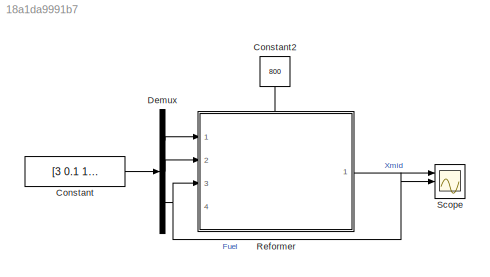
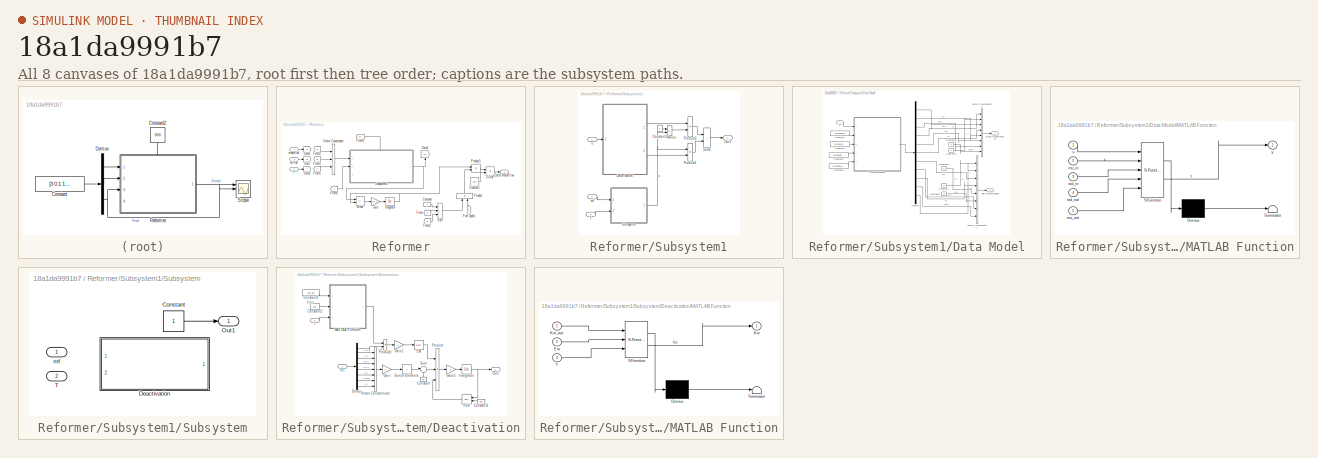
[diagram: thumbnail index - all 8 canvases of the model, root first then tree order]
MODEL slx_18a1da9991b7
KIND model
CONFIG AbsTol = auto
CONFIG EnableMultiTasking = off
CONFIG FixedStep = auto
CONFIG MaxStep = auto
CONFIG MinStep = auto
CONFIG RelTol = 1e-3
CONFIG SampleTimeConstraint = Unconstrained
CONFIG SolverName = VariableStepAuto
CONFIG StartTime = 0.0
CONFIG StopTime = 3
BLOCK [Constant] Constant
  Value = [3   0.1  1e-5]
BLOCK [Constant] Constant2
  NameLocation = left
  Value = 800
BLOCK [Demux] Demux
  Outputs = 3
  Ports = [1, 3]
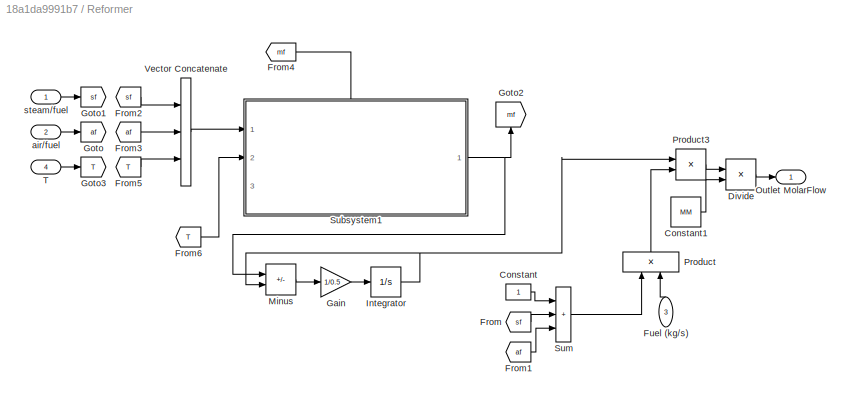
BLOCK [SubSystem] Reformer
  PortSchema = {"entries":[{"content":{"sides":[{"content":{"connectorIds":["In1","In2","In3"]},"type":"ConnectorPlacement.EquallySpacedRectSide","uuid":"bba98e9a-4a8f-433d-80b6-6443373beb37"},{"content":{"connectorIds":["Out1"],"side":"RIGHT"},"type":"ConnectorPlacement.EquallySpacedRectSide","uuid":"bb8208fa-3ad6-4550-bb87-9c458da504c5"},{"content":{"connectorIds":["In4"],"side":"TOP"},"type":"ConnectorPlaceme...<+257ch>
  Ports = [4, 1]
  RequestExecContextInheritance = off
BLOCK [Constant] Reformer/Constant
BLOCK [Constant] Reformer/Constant1
  Value = MM
BLOCK [Product] Reformer/Divide
  Inputs = */
  Ports = [2, 1]
BLOCK [From] Reformer/From
  GotoTag = sf
BLOCK [From] Reformer/From1
  GotoTag = af
BLOCK [From] Reformer/From2
  GotoTag = sf
BLOCK [From] Reformer/From3
  GotoTag = af
BLOCK [From] Reformer/From4
  GotoTag = mf
BLOCK [From] Reformer/From5
  GotoTag = T
BLOCK [From] Reformer/From6
  GotoTag = T
BLOCK [Inport] Reformer/Fuel (kg//s)
  NameLocation = right
  Port = 3
BLOCK [Gain] Reformer/Gain
  Gain = 1/0.5
BLOCK [Goto] Reformer/Goto
  GotoTag = af
BLOCK [Goto] Reformer/Goto1
  GotoTag = sf
BLOCK [Goto] Reformer/Goto2
  GotoTag = mf
  NameLocation = right
BLOCK [Goto] Reformer/Goto3
  GotoTag = T
BLOCK [Integrator] Reformer/Integrator
  Ports = [1, 1]
BLOCK [Sum] Reformer/Minus
  IconShape = rectangular
  Inputs = +-
  Ports = [2, 1]
BLOCK [Outport] Reformer/Outlet MolarFlow
BLOCK [Product] Reformer/Product
  NameLocation = right
  Ports = [2, 1]
BLOCK [Product] Reformer/Product3
  Ports = [2, 1]
BLOCK [SubSystem] Reformer/Subsystem1
  PortSchema = {"entries":[{"content":{"sides":[{"content":{"connectorIds":["In1","In2"]},"type":"ConnectorPlacement.EquallySpacedRectSide","uuid":"d4e99106-98ee-451f-9de6-7a659962116b"},{"content":{"connectorIds":["Out1"],"side":"RIGHT"},"type":"ConnectorPlacement.EquallySpacedRectSide","uuid":"1c23e47e-8482-4a31-825f-a97525afd909"},{"content":{"connectorIds":["In3"],"side":"TOP"},"type":"ConnectorPlacement.Equ...<+251ch>
  Ports = [3, 1]
  RequestExecContextInheritance = off
BLOCK [Constant] Reformer/Subsystem1/Constant2
BLOCK [SubSystem] Reformer/Subsystem1/Data Model
  Ports = [1, 2]
  RequestExecContextInheritance = off
BLOCK [Constant] Reformer/Subsystem1/Data Model/Constant1
  Value = params.std_in
BLOCK [Constant] Reformer/Subsystem1/Data Model/Constant2
  Value = 0
BLOCK [Constant] Reformer/Subsystem1/Data Model/Constant3
  Value = params.std_out
BLOCK [Constant] Reformer/Subsystem1/Data Model/Constant4
  Value = params.mu_in
BLOCK [Constant] Reformer/Subsystem1/Data Model/Constant5
  Value = 0
BLOCK [Constant] Reformer/Subsystem1/Data Model/Constant6
  Value = 0
BLOCK [Constant] Reformer/Subsystem1/Data Model/Constant7
  Value = 0
BLOCK [Constant] Reformer/Subsystem1/Data Model/Constant8
  Value = params.mu_out
BLOCK [Constant] Reformer/Subsystem1/Data Model/Constant9
  Value = 0
BLOCK [Demux] Reformer/Subsystem1/Data Model/Demux
  Outputs = 11
  Ports = [1, 11]
BLOCK [Outport] Reformer/Subsystem1/Data Model/Inlet MassFractions
BLOCK [SubSystem] Reformer/Subsystem1/Data Model/MATLAB Function
  ErrorFcn = Stateflow.Translate.translate
  PermitHierarchicalResolution = ExplicitOnly
  Ports = [5, 1]
  RequestExecContextInheritance = off
  SFBlockType = MATLAB Function
  TreatAsAtomicUnit = on
BLOCK [Demux] Reformer/Subsystem1/Data Model/MATLAB Function/ Demux 
  Outputs = 1
  Ports = [1, 1]
BLOCK [S-Function] Reformer/Subsystem1/Data Model/MATLAB Function/ SFunction 
  EnableBusSupport = on
  FunctionName = sf_sfun
  PortCounts = [5 2]
  Ports = [5, 2]
  SFcnIsStateOwnerBlock = off
  SFunctionDeploymentMode = off
  Tag = Stateflow S-Function 2
BLOCK [Terminator] Reformer/Subsystem1/Data Model/MATLAB Function/ Terminator 
BLOCK [Inport] Reformer/Subsystem1/Data Model/MATLAB Function/mu_in
  Port = 2
BLOCK [Inport] Reformer/Subsystem1/Data Model/MATLAB Function/mu_out
  Port = 5
BLOCK [Inport] Reformer/Subsystem1/Data Model/MATLAB Function/std_in
  Port = 3
BLOCK [Inport] Reformer/Subsystem1/Data Model/MATLAB Function/std_out
  Port = 4
BLOCK [Inport] Reformer/Subsystem1/Data Model/MATLAB Function/u
BLOCK [Outport] Reformer/Subsystem1/Data Model/MATLAB Function/y
BLOCK [Outport] Reformer/Subsystem1/Data Model/Outlet MassFractions
  Port = 2
BLOCK [Concatenate] Reformer/Subsystem1/Data Model/Vector Concatenate1
  NumInputs = 8
  Ports = [8, 1]
BLOCK [Concatenate] Reformer/Subsystem1/Data Model/Vector Concatenate2
  NumInputs = 8
  Ports = [8, 1]
BLOCK [Inport] Reformer/Subsystem1/Data Model/u
BLOCK [Sum] Reformer/Subsystem1/Minus
  IconShape = rectangular
  Inputs = +-
  Ports = [2, 1]
BLOCK [Outport] Reformer/Subsystem1/Out1
BLOCK [Product] Reformer/Subsystem1/Product1
  Ports = [2, 1]
BLOCK [Product] Reformer/Subsystem1/Product2
  Ports = [2, 1]
BLOCK [SubSystem] Reformer/Subsystem1/Subsystem
  Ports = [2, 1]
  RequestExecContextInheritance = off
BLOCK [Constant] Reformer/Subsystem1/Subsystem/Constant
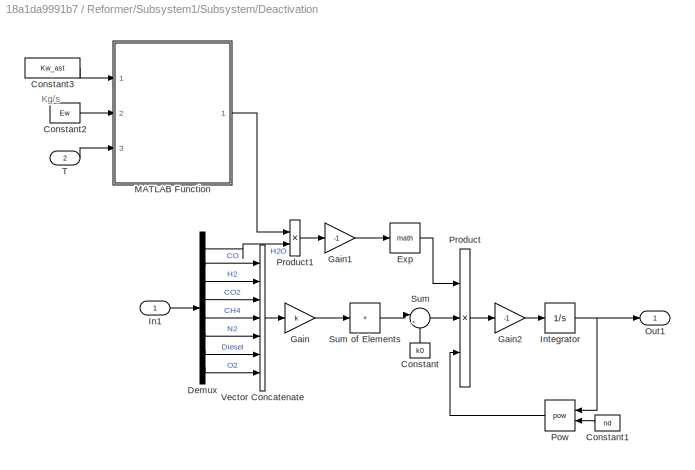
BLOCK [SubSystem] Reformer/Subsystem1/Subsystem/Deactivation
  Commented = on
  Ports = [2, 1]
  RequestExecContextInheritance = off
BLOCK [Constant] Reformer/Subsystem1/Subsystem/Deactivation/Constant
  NameLocation = right
  Value = k0
BLOCK [Constant] Reformer/Subsystem1/Subsystem/Deactivation/Constant1
  NameLocation = top
  Value = nd
BLOCK [Constant] Reformer/Subsystem1/Subsystem/Deactivation/Constant2
  Value = Ew
BLOCK [Constant] Reformer/Subsystem1/Subsystem/Deactivation/Constant3
  Value = Kw_ast
BLOCK [Demux] Reformer/Subsystem1/Subsystem/Deactivation/Demux
  Outputs = 8
  Ports = [1, 8]
BLOCK [Math] Reformer/Subsystem1/Subsystem/Deactivation/Exp
  Ports = [1, 1]
BLOCK [Gain] Reformer/Subsystem1/Subsystem/Deactivation/Gain
  Gain = k
BLOCK [Gain] Reformer/Subsystem1/Subsystem/Deactivation/Gain1
  Gain = -1
BLOCK [Gain] Reformer/Subsystem1/Subsystem/Deactivation/Gain2
  Gain = -1
BLOCK [Inport] Reformer/Subsystem1/Subsystem/Deactivation/In1
BLOCK [Integrator] Reformer/Subsystem1/Subsystem/Deactivation/Integrator
  InitialCondition = 1
  Ports = [1, 1]
BLOCK [SubSystem] Reformer/Subsystem1/Subsystem/Deactivation/MATLAB Function
  ErrorFcn = Stateflow.Translate.translate
  PermitHierarchicalResolution = ExplicitOnly
  Ports = [3, 1]
  RequestExecContextInheritance = off
  SFBlockType = MATLAB Function
  TreatAsAtomicUnit = on
BLOCK [Demux] Reformer/Subsystem1/Subsystem/Deactivation/MATLAB Function/ Demux 
  Outputs = 1
  Ports = [1, 1]
BLOCK [S-Function] Reformer/Subsystem1/Subsystem/Deactivation/MATLAB Function/ SFunction 
  EnableBusSupport = on
  FunctionName = sf_sfun
  PortCounts = [3 2]
  Ports = [3, 2]
  SFcnIsStateOwnerBlock = off
  SFunctionDeploymentMode = off
  Tag = Stateflow S-Function 3
BLOCK [Terminator] Reformer/Subsystem1/Subsystem/Deactivation/MATLAB Function/ Terminator 
BLOCK [Inport] Reformer/Subsystem1/Subsystem/Deactivation/MATLAB Function/Ew
  Port = 2
BLOCK [Outport] Reformer/Subsystem1/Subsystem/Deactivation/MATLAB Function/Kw
BLOCK [Inport] Reformer/Subsystem1/Subsystem/Deactivation/MATLAB Function/Kw_ast
BLOCK [Inport] Reformer/Subsystem1/Subsystem/Deactivation/MATLAB Function/T
  Port = 3
BLOCK [Outport] Reformer/Subsystem1/Subsystem/Deactivation/Out1
BLOCK [Math] Reformer/Subsystem1/Subsystem/Deactivation/Pow
  NameLocation = top
  Operator = pow
  Ports = [2, 1]
  RndMeth = Zero
BLOCK [Product] Reformer/Subsystem1/Subsystem/Deactivation/Product
  Inputs = 3
  Ports = [3, 1]
BLOCK [Product] Reformer/Subsystem1/Subsystem/Deactivation/Product1
  Ports = [2, 1]
BLOCK [Sum] Reformer/Subsystem1/Subsystem/Deactivation/Sum
  Inputs = |++
  Ports = [2, 1]
BLOCK [Sum] Reformer/Subsystem1/Subsystem/Deactivation/Sum of Elements
  IconShape = rectangular
  Inputs = +
  Ports = [1, 1]
BLOCK [Inport] Reformer/Subsystem1/Subsystem/Deactivation/T
  Port = 2
BLOCK [Concatenate] Reformer/Subsystem1/Subsystem/Deactivation/Vector Concatenate
  NumInputs = 7
  Ports = [7, 1]
BLOCK [Outport] Reformer/Subsystem1/Subsystem/Out1
BLOCK [Inport] Reformer/Subsystem1/Subsystem/T
  Port = 2
BLOCK [Inport] Reformer/Subsystem1/Subsystem/mf
BLOCK [Sum] Reformer/Subsystem1/Sum1
  IconShape = rectangular
  Inputs = |++
  Ports = [2, 1]
BLOCK [Inport] Reformer/Subsystem1/T
  Port = 2
BLOCK [Inport] Reformer/Subsystem1/mf
  Port = 3
BLOCK [Inport] Reformer/Subsystem1/u
BLOCK [Sum] Reformer/Sum
  IconShape = rectangular
  Inputs = |+++
  Ports = [3, 1]
BLOCK [Inport] Reformer/T
  Port = 4
BLOCK [Concatenate] Reformer/Vector Concatenate
  NumInputs = 3
  Ports = [3, 1]
BLOCK [Inport] Reformer/air//fuel
  Port = 2
BLOCK [Inport] Reformer/steam//fuel
BLOCK [Scope] Scope
  Floating = off
  NumInputPorts = 3
  Ports = [3]
  ScopeSpecificationString = Simulink.scopes.TimeScopeBlockCfg('CurrentConfiguration', extmgr.ConfigurationSet(extmgr.Configuration('Core','General UI',true),extmgr.Configuration('Core','Source UI',true),extmgr.Configuration('Sources','WiredSimulink',true),extmgr.Configuration('Visuals','Time Domain',true,'SerializedDisplays',{struct('MinYLimReal','-0.00021','MaxYLimReal','0.00187','YLabelReal','','MinYLimMag','0.00000','MaxY...<+2897ch>
ANNOTATION Reformer/Subsystem1/Subsystem/Deactivation: Kg/s
LINE Constant2:1 -> Reformer:4
LINE Constant:1 -> Demux:1
LINE Demux:1 -> Reformer:1
LINE Demux:2 -> Reformer:2
NET Demux:3 -> Reformer:3, Scope:2
LINE Reformer/Constant1:1 -> Reformer/Divide:2
LINE Reformer/Constant:1 -> Reformer/Sum:1
LINE Reformer/Divide:1 -> Reformer/Outlet MolarFlow:1
LINE Reformer/From1:1 -> Reformer/Sum:3
LINE Reformer/From2:1 -> Reformer/Vector Concatenate:1
LINE Reformer/From3:1 -> Reformer/Vector Concatenate:2
LINE Reformer/From4:1 -> Reformer/Subsystem1:3
LINE Reformer/From5:1 -> Reformer/Vector Concatenate:3
LINE Reformer/From6:1 -> Reformer/Subsystem1:2
LINE Reformer/From:1 -> Reformer/Sum:2
LINE Reformer/Fuel (kg//s):1 -> Reformer/Product:2
LINE Reformer/Gain:1 -> Reformer/Integrator:1
NET Reformer/Integrator:1 -> Reformer/Minus:2, Reformer/Product3:1
LINE Reformer/Minus:1 -> Reformer/Gain:1
LINE Reformer/Product3:1 -> Reformer/Divide:1
LINE Reformer/Product:1 -> Reformer/Product3:2
LINE Reformer/Subsystem1/Constant2:1 -> Reformer/Subsystem1/Minus:1
LINE Reformer/Subsystem1/Data Model/Constant1:1 -> Reformer/Subsystem1/Data Model/MATLAB Function:3
LINE Reformer/Subsystem1/Data Model/Constant2:1 -> Reformer/Subsystem1/Data Model/Vector Concatenate2:8
LINE Reformer/Subsystem1/Data Model/Constant3:1 -> Reformer/Subsystem1/Data Model/MATLAB Function:4
LINE Reformer/Subsystem1/Data Model/Constant4:1 -> Reformer/Subsystem1/Data Model/MATLAB Function:2
LINE Reformer/Subsystem1/Data Model/Constant5:1 -> Reformer/Subsystem1/Data Model/Vector Concatenate1:5
LINE Reformer/Subsystem1/Data Model/Constant6:1 -> Reformer/Subsystem1/Data Model/Vector Concatenate1:6
LINE Reformer/Subsystem1/Data Model/Constant7:1 -> Reformer/Subsystem1/Data Model/Vector Concatenate1:1
LINE Reformer/Subsystem1/Data Model/Constant8:1 -> Reformer/Subsystem1/Data Model/MATLAB Function:5
LINE Reformer/Subsystem1/Data Model/Constant9:1 -> Reformer/Subsystem1/Data Model/Vector Concatenate2:2
LINE Reformer/Subsystem1/Data Model/Demux:1 -> Reformer/Subsystem1/Data Model/Vector Concatenate2:3
LINE Reformer/Subsystem1/Data Model/Demux:10 -> Reformer/Subsystem1/Data Model/Vector Concatenate1:8
LINE Reformer/Subsystem1/Data Model/Demux:11 -> Reformer/Subsystem1/Data Model/Vector Concatenate1:2
LINE Reformer/Subsystem1/Data Model/Demux:2 -> Reformer/Subsystem1/Data Model/Vector Concatenate2:5
LINE Reformer/Subsystem1/Data Model/Demux:3 -> Reformer/Subsystem1/Data Model/Vector Concatenate2:7
LINE Reformer/Subsystem1/Data Model/Demux:4 -> Reformer/Subsystem1/Data Model/Vector Concatenate2:1
LINE Reformer/Subsystem1/Data Model/Demux:5 -> Reformer/Subsystem1/Data Model/Vector Concatenate2:6
LINE Reformer/Subsystem1/Data Model/Demux:6 -> Reformer/Subsystem1/Data Model/Vector Concatenate2:4
LINE Reformer/Subsystem1/Data Model/Demux:7 -> Reformer/Subsystem1/Data Model/Vector Concatenate1:3
LINE Reformer/Subsystem1/Data Model/Demux:8 -> Reformer/Subsystem1/Data Model/Vector Concatenate1:7
LINE Reformer/Subsystem1/Data Model/Demux:9 -> Reformer/Subsystem1/Data Model/Vector Concatenate1:4
LINE Reformer/Subsystem1/Data Model/MATLAB Function:1 -> Reformer/Subsystem1/Data Model/Demux:1
LINE Reformer/Subsystem1/Data Model/Vector Concatenate1:1 -> Reformer/Subsystem1/Data Model/Inlet MassFractions:1
LINE Reformer/Subsystem1/Data Model/Vector Concatenate2:1 -> Reformer/Subsystem1/Data Model/Outlet MassFractions:1
LINE Reformer/Subsystem1/Data Model/u:1 -> Reformer/Subsystem1/Data Model/MATLAB Function:1
LINE Reformer/Subsystem1/Data Model:1 -> Reformer/Subsystem1/Product2:1
LINE Reformer/Subsystem1/Data Model:2 -> Reformer/Subsystem1/Product1:2
LINE Reformer/Subsystem1/Minus:1 -> Reformer/Subsystem1/Product2:2
LINE Reformer/Subsystem1/Product1:1 -> Reformer/Subsystem1/Sum1:2
LINE Reformer/Subsystem1/Product2:1 -> Reformer/Subsystem1/Sum1:1
LINE Reformer/Subsystem1/Subsystem/Constant:1 -> Reformer/Subsystem1/Subsystem/Out1:1
LINE Reformer/Subsystem1/Subsystem/Deactivation/Constant1:1 -> Reformer/Subsystem1/Subsystem/Deactivation/Pow:2
LINE Reformer/Subsystem1/Subsystem/Deactivation/Constant2:1 -> Reformer/Subsystem1/Subsystem/Deactivation/MATLAB Function:2
LINE Reformer/Subsystem1/Subsystem/Deactivation/Constant3:1 -> Reformer/Subsystem1/Subsystem/Deactivation/MATLAB Function:1
LINE Reformer/Subsystem1/Subsystem/Deactivation/Constant:1 -> Reformer/Subsystem1/Subsystem/Deactivation/Sum:2
LINE Reformer/Subsystem1/Subsystem/Deactivation/Demux:1 -> Reformer/Subsystem1/Subsystem/Deactivation/Product1:2
LINE Reformer/Subsystem1/Subsystem/Deactivation/Demux:2 -> Reformer/Subsystem1/Subsystem/Deactivation/Vector Concatenate:1
LINE Reformer/Subsystem1/Subsystem/Deactivation/Demux:3 -> Reformer/Subsystem1/Subsystem/Deactivation/Vector Concatenate:2
LINE Reformer/Subsystem1/Subsystem/Deactivation/Demux:4 -> Reformer/Subsystem1/Subsystem/Deactivation/Vector Concatenate:3
LINE Reformer/Subsystem1/Subsystem/Deactivation/Demux:5 -> Reformer/Subsystem1/Subsystem/Deactivation/Vector Concatenate:4
LINE Reformer/Subsystem1/Subsystem/Deactivation/Demux:6 -> Reformer/Subsystem1/Subsystem/Deactivation/Vector Concatenate:5
LINE Reformer/Subsystem1/Subsystem/Deactivation/Demux:7 -> Reformer/Subsystem1/Subsystem/Deactivation/Vector Concatenate:6
LINE Reformer/Subsystem1/Subsystem/Deactivation/Demux:8 -> Reformer/Subsystem1/Subsystem/Deactivation/Vector Concatenate:7
LINE Reformer/Subsystem1/Subsystem/Deactivation/Exp:1 -> Reformer/Subsystem1/Subsystem/Deactivation/Product:1
LINE Reformer/Subsystem1/Subsystem/Deactivation/Gain1:1 -> Reformer/Subsystem1/Subsystem/Deactivation/Exp:1
LINE Reformer/Subsystem1/Subsystem/Deactivation/Gain2:1 -> Reformer/Subsystem1/Subsystem/Deactivation/Integrator:1
LINE Reformer/Subsystem1/Subsystem/Deactivation/Gain:1 -> Reformer/Subsystem1/Subsystem/Deactivation/Sum of Elements:1
LINE Reformer/Subsystem1/Subsystem/Deactivation/In1:1 -> Reformer/Subsystem1/Subsystem/Deactivation/Demux:1
NET Reformer/Subsystem1/Subsystem/Deactivation/Integrator:1 -> Reformer/Subsystem1/Subsystem/Deactivation/Out1:1, Reformer/Subsystem1/Subsystem/Deactivation/Pow:1
LINE Reformer/Subsystem1/Subsystem/Deactivation/MATLAB Function:1 -> Reformer/Subsystem1/Subsystem/Deactivation/Product1:1
LINE Reformer/Subsystem1/Subsystem/Deactivation/Pow:1 -> Reformer/Subsystem1/Subsystem/Deactivation/Product:3
LINE Reformer/Subsystem1/Subsystem/Deactivation/Product1:1 -> Reformer/Subsystem1/Subsystem/Deactivation/Gain1:1
LINE Reformer/Subsystem1/Subsystem/Deactivation/Product:1 -> Reformer/Subsystem1/Subsystem/Deactivation/Gain2:1
LINE Reformer/Subsystem1/Subsystem/Deactivation/Sum of Elements:1 -> Reformer/Subsystem1/Subsystem/Deactivation/Sum:1
LINE Reformer/Subsystem1/Subsystem/Deactivation/Sum:1 -> Reformer/Subsystem1/Subsystem/Deactivation/Product:2
LINE Reformer/Subsystem1/Subsystem/Deactivation/T:1 -> Reformer/Subsystem1/Subsystem/Deactivation/MATLAB Function:3
LINE Reformer/Subsystem1/Subsystem/Deactivation/Vector Concatenate:1 -> Reformer/Subsystem1/Subsystem/Deactivation/Gain:1
NET Reformer/Subsystem1/Subsystem:1 -> Reformer/Subsystem1/Minus:2, Reformer/Subsystem1/Product1:1
LINE Reformer/Subsystem1/Sum1:1 -> Reformer/Subsystem1/Out1:1
LINE Reformer/Subsystem1/T:1 -> Reformer/Subsystem1/Subsystem:2
LINE Reformer/Subsystem1/mf:1 -> Reformer/Subsystem1/Subsystem:1
LINE Reformer/Subsystem1/u:1 -> Reformer/Subsystem1/Data Model:1
NET Reformer/Subsystem1:1 -> Reformer/Goto2:1, Reformer/Minus:1
LINE Reformer/Sum:1 -> Reformer/Product:1
LINE Reformer/T:1 -> Reformer/Goto3:1
LINE Reformer/Vector Concatenate:1 -> Reformer/Subsystem1:1
LINE Reformer/air//fuel:1 -> Reformer/Goto:1
LINE Reformer/steam//fuel:1 -> Reformer/Goto1:1
LINE Reformer:1 -> Scope:1
note: NET lines group one-source signal fan-out (src -> all destinations, sorted); 1:1 wires keep LINE
CHART Reformer/Subsystem1/Data Model/MATLAB Function states=1 transitions=1
  STATE_LABEL 'eML_blk_kernel()'
  STATE_LABEL 'SCRIPT:\nfunction y = fcn(u,mu_in,std_in,std_out,mu_out)\n\ny = REFORMER_mf((u - mu_in)./std_in).*std_out + mu_out;\n'
CHART Reformer/Subsystem1/Subsystem/Deactivation/MATLAB Function states=1 transitions=1
  STATE_LABEL 'eML_blk_kernel()'
  STATE_LABEL 'SCRIPT:\nfunction Kw = fcn(Kw_ast,Ew,T)\n\nR = 8.314472;% J/(mol K) \n\nKw = Kw_ast*exp(-Ew/R*(1/(T+273.15) - 1/573));\n'
CHART  states=0 transitions=0
CHART  states=0 transitions=0
